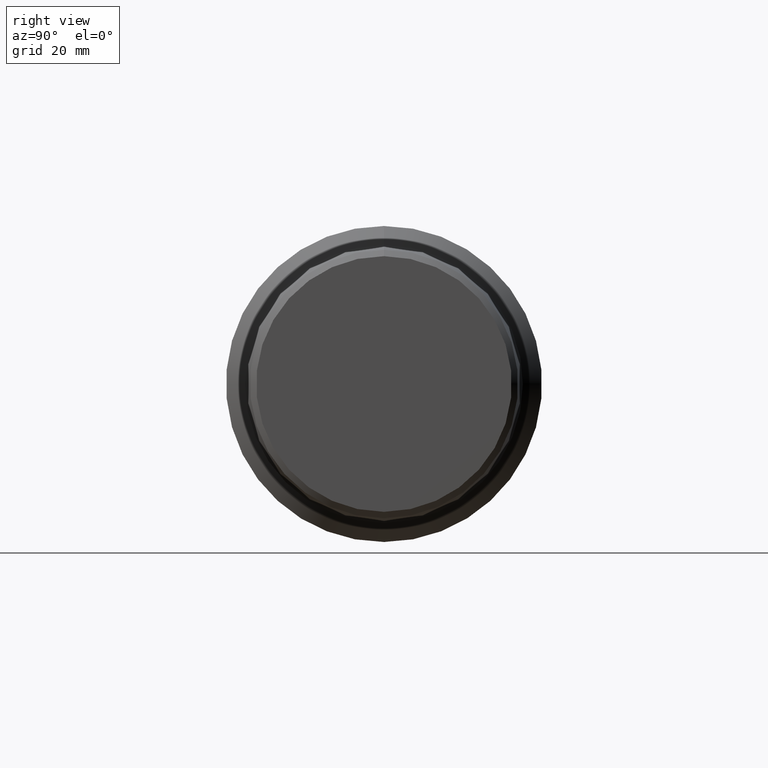
[diagram: clean part render]
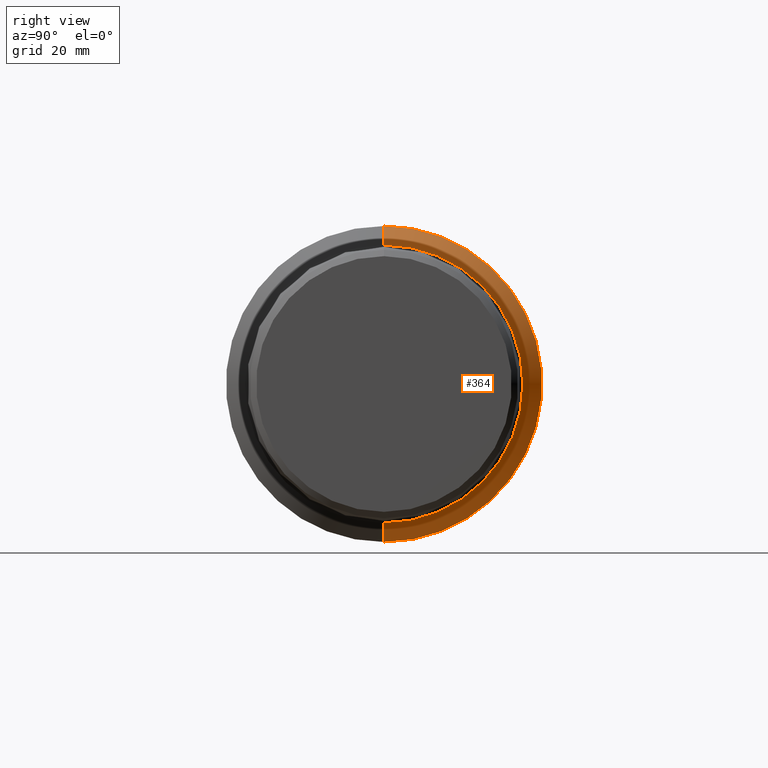
[diagram: same view with one face highlighted and labeled with its STEP entity id]
A machine part, right view. The second image highlights one B-rep face of the part: STEP entity #364.
In plain terms, the highlighted conical surface has half-angle 45 deg.
Its self-contained STEP definition (entity closure, byte-faithful):
#5 = LINE ( 'NONE', #283, #240 ) ;
#14 = DIRECTION ( 'NONE',  ( 0.0000000000000000000, 0.0000000000000000000, 1.000000000000000000 ) ) ;
#16 = EDGE_CURVE ( 'NONE', #415, #177, #154, .T. ) ;
#19 = EDGE_CURVE ( 'NONE', #107, #487, #553, .T. ) ;
#25 = CONICAL_SURFACE ( 'NONE', #380, 1.647999999999999909, 0.7853981633974507215 ) ;
#45 = CARTESIAN_POINT ( 'NONE',  ( 4.778000000000000469, 0.0000000000000000000, 1.875000000000000000 ) ) ;
#70 = DIRECTION ( 'NONE',  ( -0.7071067811865457964, 8.659560562354953812E-17, -0.7071067811865492381 ) ) ;
#86 = CARTESIAN_POINT ( 'NONE',  ( 4.778000000000000469, 0.0000000000000000000, 0.0000000000000000000 ) ) ;
#107 = VERTEX_POINT ( 'NONE', #45 ) ;
#132 = ORIENTED_EDGE ( 'NONE', *, *, #19, .F. ) ;
#135 = ORIENTED_EDGE ( 'NONE', *, *, #525, .F. ) ;
#154 = CIRCLE ( 'NONE', #605, 1.647999999999999909 ) ;
#160 = AXIS2_PLACEMENT_3D ( 'NONE', #86, #394, #542 ) ;
#177 = VERTEX_POINT ( 'NONE', #311 ) ;
#198 = ORIENTED_EDGE ( 'NONE', *, *, #313, .T. ) ;
#201 = CARTESIAN_POINT ( 'NONE',  ( 5.004999999999999893, 0.0000000000000000000, 0.0000000000000000000 ) ) ;
#208 = FACE_OUTER_BOUND ( 'NONE', #422, .T. ) ;
#232 = DIRECTION ( 'NONE',  ( 0.0000000000000000000, 0.0000000000000000000, 1.000000000000000000 ) ) ;
#240 = VECTOR ( 'NONE', #70, 39.37007874015748143 ) ;
#283 = CARTESIAN_POINT ( 'NONE',  ( 5.004999999999999893, 2.018217924994838300E-16, -1.647999999999999909 ) ) ;
#294 = CARTESIAN_POINT ( 'NONE',  ( 5.004999999999999893, 0.0000000000000000000, 1.647999999999999909 ) ) ;
#311 = CARTESIAN_POINT ( 'NONE',  ( 5.004999999999999893, 2.157215336698062520E-16, -1.647999999999999909 ) ) ;
#313 = EDGE_CURVE ( 'NONE', #177, #487, #5, .T. ) ;
#320 = VECTOR ( 'NONE', #544, 39.37007874015748143 ) ;
#364 = ADVANCED_FACE ( 'NONE', ( #208 ), #25, .T. ) ;
#380 = AXIS2_PLACEMENT_3D ( 'NONE', #201, #560, #14 ) ;
#391 = CARTESIAN_POINT ( 'NONE',  ( 5.004999999999999893, 0.0000000000000000000, 1.647999999999999909 ) ) ;
#394 = DIRECTION ( 'NONE',  ( -1.000000000000000000, -0.0000000000000000000, -0.0000000000000000000 ) ) ;
#415 = VERTEX_POINT ( 'NONE', #391 ) ;
#422 = EDGE_LOOP ( 'NONE', ( #480, #198, #132, #135 ) ) ;
#436 = DIRECTION ( 'NONE',  ( -1.000000000000000000, -0.0000000000000000000, -0.0000000000000000000 ) ) ;
#469 = LINE ( 'NONE', #294, #320 ) ;
#475 = CARTESIAN_POINT ( 'NONE',  ( 4.778000000000000469, 2.296212748401287479E-16, -1.875000000000000000 ) ) ;
#480 = ORIENTED_EDGE ( 'NONE', *, *, #16, .T. ) ;
#487 = VERTEX_POINT ( 'NONE', #475 ) ;
#491 = CARTESIAN_POINT ( 'NONE',  ( 5.004999999999999893, 0.0000000000000000000, 0.0000000000000000000 ) ) ;
#525 = EDGE_CURVE ( 'NONE', #415, #107, #469, .T. ) ;
#542 = DIRECTION ( 'NONE',  ( 0.0000000000000000000, 0.0000000000000000000, 1.000000000000000000 ) ) ;
#544 = DIRECTION ( 'NONE',  ( -0.7071067811865457964, 0.0000000000000000000, 0.7071067811865492381 ) ) ;
#553 = CIRCLE ( 'NONE', #160, 1.875000000000000000 ) ;
#560 = DIRECTION ( 'NONE',  ( -1.000000000000000000, -0.0000000000000000000, -0.0000000000000000000 ) ) ;
#605 = AXIS2_PLACEMENT_3D ( 'NONE', #491, #436, #232 ) ;